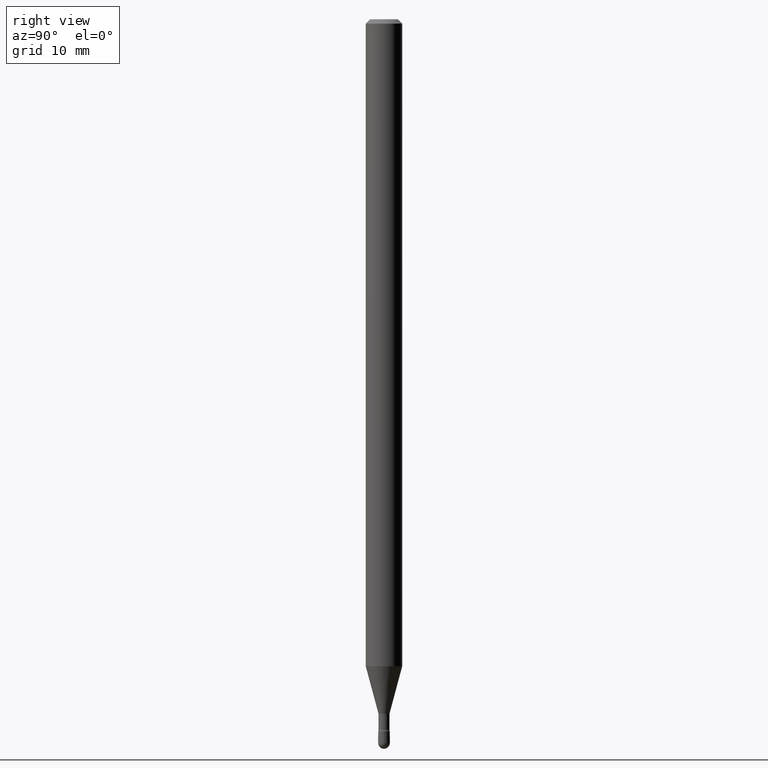
[diagram: clean part render]
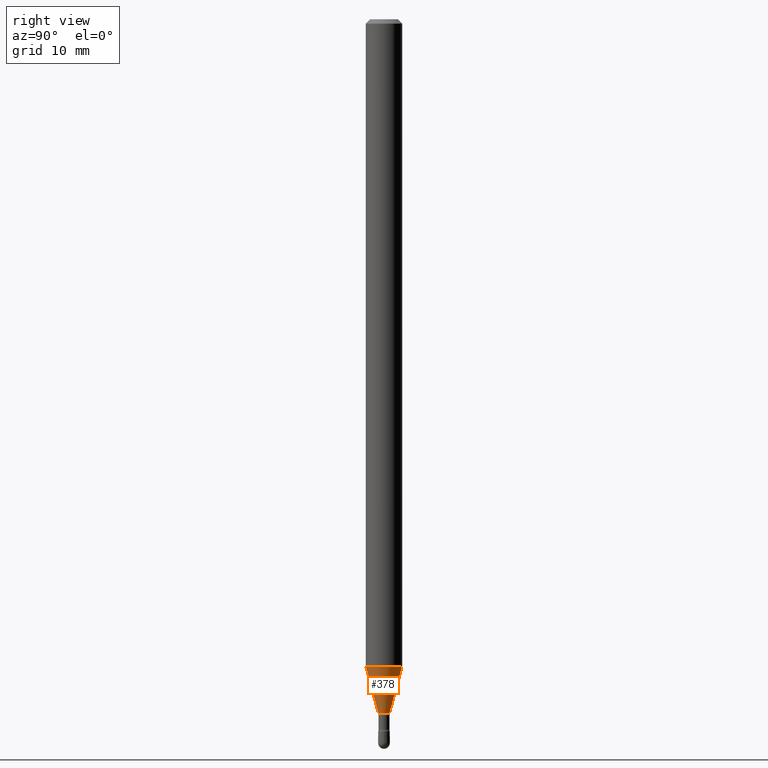
[diagram: same view with one face highlighted and labeled with its STEP entity id]
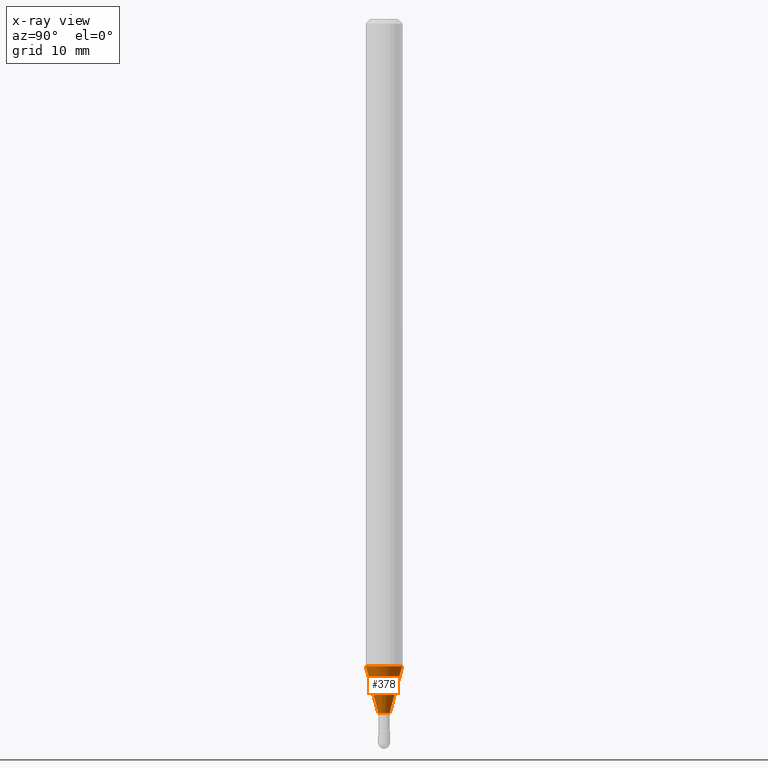
[diagram: x-ray of the same camera — body ghosted, the highlighted face saturated]
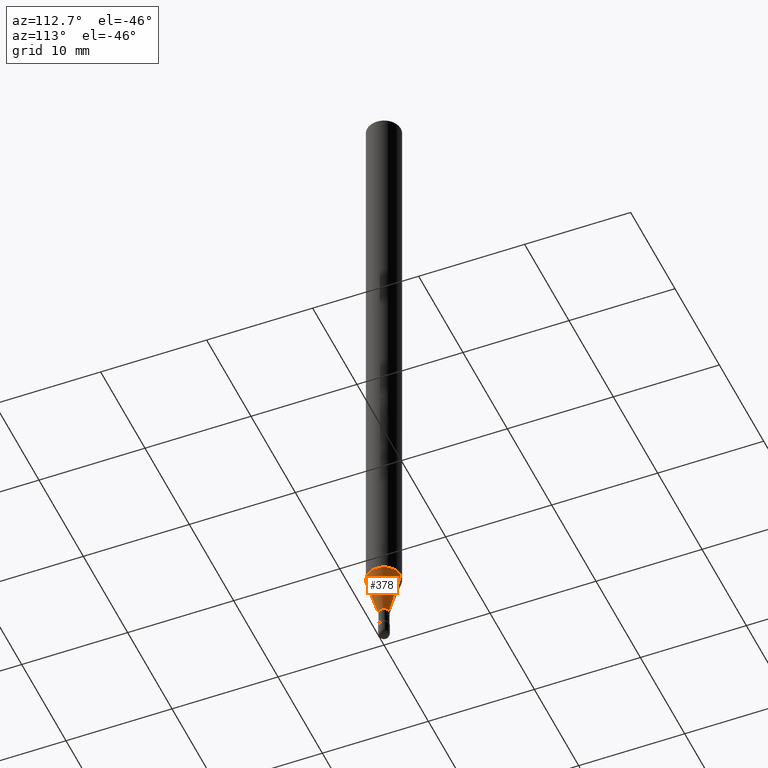
[diagram: same view with one face highlighted and labeled with its STEP entity id]
A machine part, right view. The second image highlights one B-rep face of the part: STEP entity #378.
The next image is the same camera in x-ray: the body ghosted, the highlighted face saturated — about 0% of this face is hidden behind the body in this view.
A second angle (auxiliary view) of the same face is appended — the face is thin or edge-on in the first view.
In plain terms, the highlighted conical surface has half-angle 15 deg.
Its self-contained STEP definition (entity closure, byte-faithful):
#25 = DIRECTION ( 'NONE',  ( -6.982962677686265922E-15, -1.000000000000000000, 4.370956789862821150E-15 ) ) ;
#34 = AXIS2_PLACEMENT_3D ( 'NONE', #464, #76, #494 ) ;
#58 = AXIS2_PLACEMENT_3D ( 'NONE', #364, #305, #89 ) ;
#71 = VERTEX_POINT ( 'NONE', #173 ) ;
#76 = DIRECTION ( 'NONE',  ( -2.445421573966572073E-29, 3.491548978068420720E-15, 1.000000000000000000 ) ) ;
#89 = DIRECTION ( 'NONE',  ( -6.982962677686265922E-15, -1.000000000000000000, 0.000000000000000000 ) ) ;
#119 = VERTEX_POINT ( 'NONE', #418 ) ;
#122 = LINE ( 'NONE', #291, #181 ) ;
#127 = CONICAL_SURFACE ( 'NONE', #58, 0.01931111260566397564, 0.2617993877991498519 ) ;
#148 = CARTESIAN_POINT ( 'NONE',  ( -1.348487785898901629E-16, -0.01931111260567227803, -2.378092501787273605 ) ) ;
#155 = DIRECTION ( 'NONE',  ( 1.839019923739597160E-15, 0.2588190451025245142, 0.9659258262890670910 ) ) ;
#165 = CARTESIAN_POINT ( 'NONE',  ( 5.421278024669828095E-29, -7.740447679194095170E-15, -2.216909379709240735 ) ) ;
#173 = CARTESIAN_POINT ( 'NONE',  ( 4.440892098501165545E-16, 0.06249999999999224232, -2.216909379709240735 ) ) ;
#181 = VECTOR ( 'NONE', #155, 39.37007874015748854 ) ;
#192 = CARTESIAN_POINT ( 'NONE',  ( -1.348487785898901629E-16, -0.01931111260567227803, -2.378092501787273605 ) ) ;
#200 = ORIENTED_EDGE ( 'NONE', *, *, #219, .F. ) ;
#209 = VERTEX_POINT ( 'NONE', #223 ) ;
#219 = EDGE_CURVE ( 'NONE', #333, #119, #560, .T. ) ;
#223 = CARTESIAN_POINT ( 'NONE',  ( 2.906514588320867785E-16, 0.01931111260565567325, -2.378092501787273605 ) ) ;
#238 = FACE_OUTER_BOUND ( 'NONE', #326, .T. ) ;
#266 = CIRCLE ( 'NONE', #359, 0.06250000000000000000 ) ;
#287 = CIRCLE ( 'NONE', #34, 0.01931111260566397564 ) ;
#291 = CARTESIAN_POINT ( 'NONE',  ( 1.372137078140565094E-16, 0.01931111260565567325, -2.378092501787273605 ) ) ;
#305 = DIRECTION ( 'NONE',  ( -2.445421573966572073E-29, 3.491548978068420720E-15, 1.000000000000000000 ) ) ;
#326 = EDGE_LOOP ( 'NONE', ( #551, #346, #444, #200 ) ) ;
#332 = DIRECTION ( 'NONE',  ( -2.445421573966572073E-29, 3.491548978068420720E-15, 1.000000000000000000 ) ) ;
#333 = VERTEX_POINT ( 'NONE', #192 ) ;
#346 = ORIENTED_EDGE ( 'NONE', *, *, #536, .T. ) ;
#357 = DIRECTION ( 'NONE',  ( -1.807323732225327378E-15, -0.2588190451025177974, 0.9659258262890690894 ) ) ;
#359 = AXIS2_PLACEMENT_3D ( 'NONE', #165, #332, #25 ) ;
#364 = CARTESIAN_POINT ( 'NONE',  ( 5.815438708758737850E-29, -8.303226444367528086E-15, -2.378092501787273605 ) ) ;
#378 = ADVANCED_FACE ( 'NONE', ( #238 ), #127, .T. ) ;
#387 = EDGE_CURVE ( 'NONE', #119, #71, #266, .T. ) ;
#415 = VECTOR ( 'NONE', #357, 39.37007874015748143 ) ;
#418 = CARTESIAN_POINT ( 'NONE',  ( -4.364351673553375831E-16, -0.06250000000000775768, -2.216909379709240291 ) ) ;
#444 = ORIENTED_EDGE ( 'NONE', *, *, #387, .F. ) ;
#464 = CARTESIAN_POINT ( 'NONE',  ( 5.815438708758737850E-29, -8.303226444367528086E-15, -2.378092501787273605 ) ) ;
#494 = DIRECTION ( 'NONE',  ( -6.982962677686265922E-15, -1.000000000000000000, 0.000000000000000000 ) ) ;
#536 = EDGE_CURVE ( 'NONE', #209, #71, #122, .T. ) ;
#542 = EDGE_CURVE ( 'NONE', #333, #209, #287, .T. ) ;
#551 = ORIENTED_EDGE ( 'NONE', *, *, #542, .T. ) ;
#560 = LINE ( 'NONE', #148, #415 ) ;